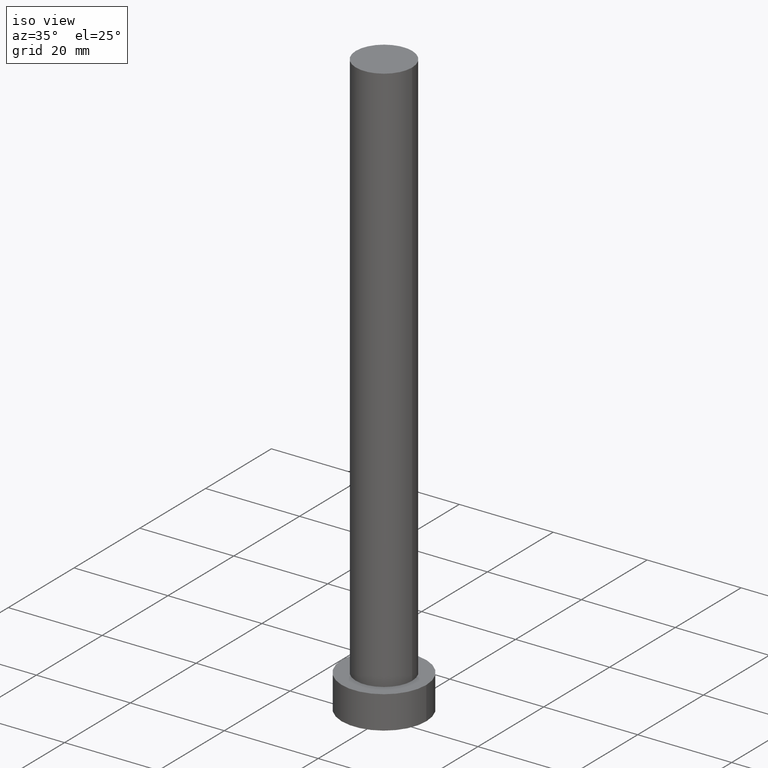
[diagram: clean part render]
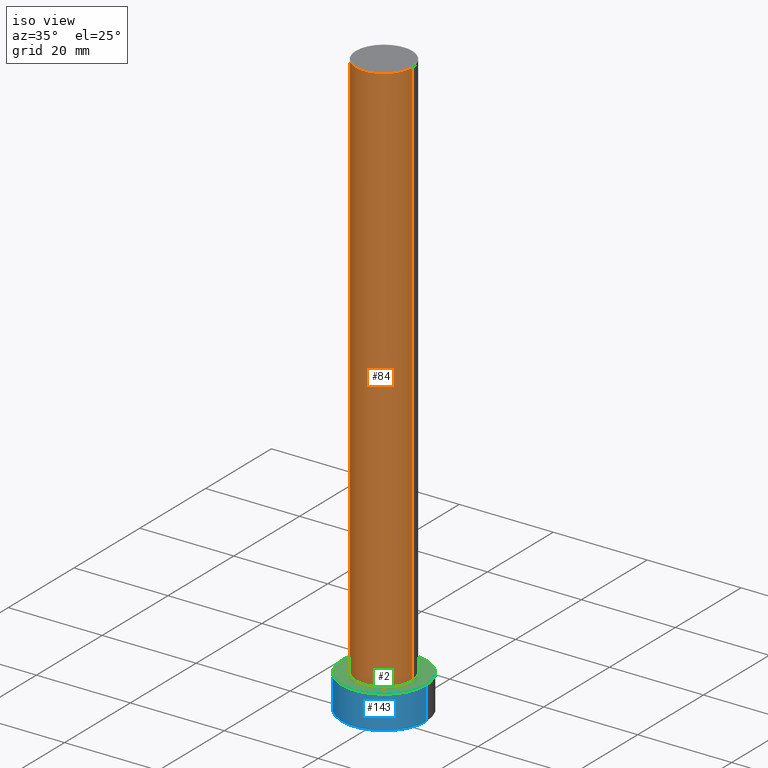
[diagram: same view with three faces highlighted in distinct colors, each labeled with its STEP entity id]
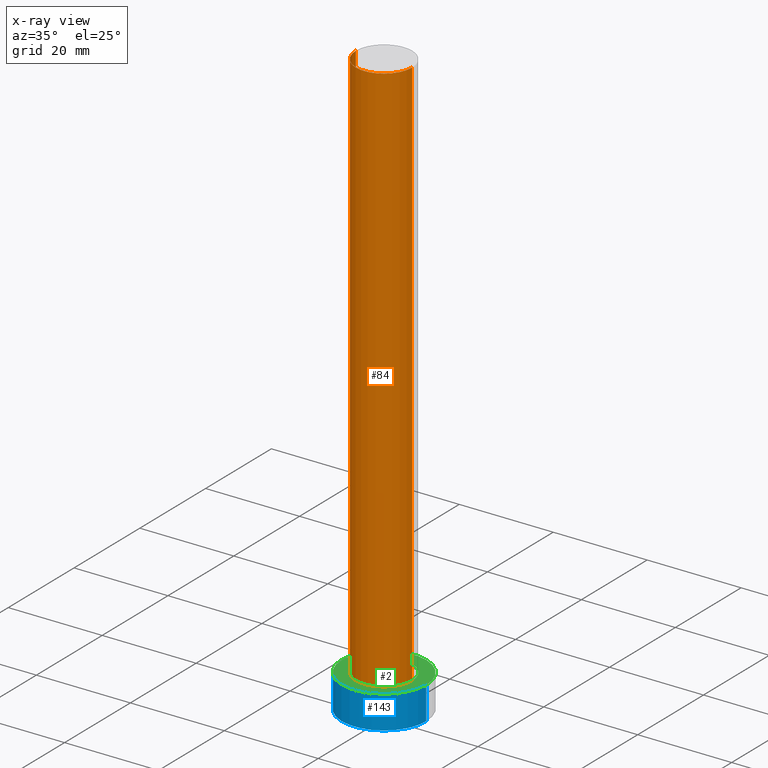
[diagram: x-ray of the same camera — body ghosted, the three highlighted faces saturated]
A machine part, iso view with three faces highlighted in distinct colors.
The next image is the same camera in x-ray (body ghosted, the three faces saturated) — at least one of them is partly hidden behind the body in this view.
Their STEP definitions:

[orange] entity #84 — the highlighted cylindrical surface (edge-blend (fillet) strip) has radius 6 mm, axis along (-0, -0, -1).
#1 = CARTESIAN_POINT ( 'NONE',  ( -6.000000000000000888, 0.000000000000000000, 7.000000000000000000 ) ) ;
#7 = VECTOR ( 'NONE', #52, 1000.000000000000000 ) ;
#10 = AXIS2_PLACEMENT_3D ( 'NONE', #214, #111, #40 ) ;
#15 = CARTESIAN_POINT ( 'NONE',  ( 6.000000000000000888, 7.347880794884120722E-16, 125.0000000000000000 ) ) ;
#22 = VERTEX_POINT ( 'NONE', #15 ) ;
#35 = CARTESIAN_POINT ( 'NONE',  ( 0.000000000000000000, 0.000000000000000000, 125.0000000000000000 ) ) ;
#37 = DIRECTION ( 'NONE',  ( 0.000000000000000000, 0.000000000000000000, 1.000000000000000000 ) ) ;
#38 = DIRECTION ( 'NONE',  ( 1.000000000000000000, 0.000000000000000000, 0.000000000000000000 ) ) ;
#39 = ORIENTED_EDGE ( 'NONE', *, *, #162, .F. ) ;
#40 = DIRECTION ( 'NONE',  ( -1.000000000000000000, 0.000000000000000000, 0.000000000000000000 ) ) ;
#42 = CIRCLE ( 'NONE', #96, 6.000000000000000888 ) ;
#52 = DIRECTION ( 'NONE',  ( -0.000000000000000000, -0.000000000000000000, -1.000000000000000000 ) ) ;
#73 = CARTESIAN_POINT ( 'NONE',  ( -6.000000000000000888, 0.000000000000000000, 125.0000000000000000 ) ) ;
#81 = VECTOR ( 'NONE', #182, 1000.000000000000000 ) ;
#82 = VERTEX_POINT ( 'NONE', #229 ) ;
#84 = ADVANCED_FACE ( 'NONE', ( #126 ), #146, .T. ) ;
#86 = LINE ( 'NONE', #73, #7 ) ;
#96 = AXIS2_PLACEMENT_3D ( 'NONE', #35, #37, #129 ) ;
#99 = EDGE_CURVE ( 'NONE', #193, #22, #42, .T. ) ;
#111 = DIRECTION ( 'NONE',  ( -0.000000000000000000, -0.000000000000000000, -1.000000000000000000 ) ) ;
#126 = FACE_OUTER_BOUND ( 'NONE', #216, .T. ) ;
#129 = DIRECTION ( 'NONE',  ( 1.000000000000000000, 0.000000000000000000, 0.000000000000000000 ) ) ;
#137 = AXIS2_PLACEMENT_3D ( 'NONE', #151, #249, #38 ) ;
#146 = CYLINDRICAL_SURFACE ( 'NONE', #10, 6.000000000000000888 ) ;
#151 = CARTESIAN_POINT ( 'NONE',  ( 0.000000000000000000, 0.000000000000000000, 7.000000000000000000 ) ) ;
#155 = LINE ( 'NONE', #235, #81 ) ;
#156 = VERTEX_POINT ( 'NONE', #1 ) ;
#161 = ORIENTED_EDGE ( 'NONE', *, *, #201, .T. ) ;
#162 = EDGE_CURVE ( 'NONE', #22, #82, #155, .T. ) ;
#182 = DIRECTION ( 'NONE',  ( -0.000000000000000000, -0.000000000000000000, -1.000000000000000000 ) ) ;
#191 = ORIENTED_EDGE ( 'NONE', *, *, #209, .T. ) ;
#193 = VERTEX_POINT ( 'NONE', #237 ) ;
#201 = EDGE_CURVE ( 'NONE', #193, #156, #86, .T. ) ;
#209 = EDGE_CURVE ( 'NONE', #156, #82, #255, .T. ) ;
#214 = CARTESIAN_POINT ( 'NONE',  ( 0.000000000000000000, 0.000000000000000000, 125.0000000000000000 ) ) ;
#216 = EDGE_LOOP ( 'NONE', ( #39, #240, #161, #191 ) ) ;
#229 = CARTESIAN_POINT ( 'NONE',  ( 6.000000000000000888, 7.347880794884120722E-16, 7.000000000000000000 ) ) ;
#235 = CARTESIAN_POINT ( 'NONE',  ( 6.000000000000000888, 7.347880794884120722E-16, 125.0000000000000000 ) ) ;
#237 = CARTESIAN_POINT ( 'NONE',  ( -6.000000000000000888, 0.000000000000000000, 125.0000000000000000 ) ) ;
#240 = ORIENTED_EDGE ( 'NONE', *, *, #99, .F. ) ;
#249 = DIRECTION ( 'NONE',  ( 0.000000000000000000, 0.000000000000000000, 1.000000000000000000 ) ) ;
#255 = CIRCLE ( 'NONE', #137, 6.000000000000000888 ) ;

[blue] entity #143 — the highlighted cylindrical surface (partial cylindrical patch) has radius 9 mm, axis along (-0, -0, -1).
#4 = CARTESIAN_POINT ( 'NONE',  ( 9.000000000000000000, 1.102182119232617714E-15, 7.000000000000000000 ) ) ;
#12 = VERTEX_POINT ( 'NONE', #172 ) ;
#13 = CYLINDRICAL_SURFACE ( 'NONE', #242, 9.000000000000000000 ) ;
#20 = CARTESIAN_POINT ( 'NONE',  ( 0.000000000000000000, 0.000000000000000000, 7.000000000000000000 ) ) ;
#25 = AXIS2_PLACEMENT_3D ( 'NONE', #108, #106, #87 ) ;
#32 = CARTESIAN_POINT ( 'NONE',  ( -9.000000000000000000, 0.000000000000000000, 0.000000000000000000 ) ) ;
#45 = LINE ( 'NONE', #64, #114 ) ;
#54 = ORIENTED_EDGE ( 'NONE', *, *, #195, .T. ) ;
#55 = ORIENTED_EDGE ( 'NONE', *, *, #90, .F. ) ;
#64 = CARTESIAN_POINT ( 'NONE',  ( -9.000000000000000000, 0.000000000000000000, 7.000000000000000000 ) ) ;
#69 = DIRECTION ( 'NONE',  ( 0.000000000000000000, 0.000000000000000000, 1.000000000000000000 ) ) ;
#77 = ORIENTED_EDGE ( 'NONE', *, *, #245, .T. ) ;
#79 = EDGE_LOOP ( 'NONE', ( #136, #55, #54, #77 ) ) ;
#87 = DIRECTION ( 'NONE',  ( 1.000000000000000000, 0.000000000000000000, 0.000000000000000000 ) ) ;
#90 = EDGE_CURVE ( 'NONE', #12, #218, #190, .T. ) ;
#92 = DIRECTION ( 'NONE',  ( -0.000000000000000000, -0.000000000000000000, -1.000000000000000000 ) ) ;
#101 = AXIS2_PLACEMENT_3D ( 'NONE', #159, #69, #105 ) ;
#105 = DIRECTION ( 'NONE',  ( 1.000000000000000000, 0.000000000000000000, 0.000000000000000000 ) ) ;
#106 = DIRECTION ( 'NONE',  ( 0.000000000000000000, 0.000000000000000000, 1.000000000000000000 ) ) ;
#108 = CARTESIAN_POINT ( 'NONE',  ( 0.000000000000000000, 0.000000000000000000, 7.000000000000000000 ) ) ;
#114 = VECTOR ( 'NONE', #244, 1000.000000000000000 ) ;
#136 = ORIENTED_EDGE ( 'NONE', *, *, #175, .F. ) ;
#140 = VECTOR ( 'NONE', #160, 1000.000000000000000 ) ;
#143 = ADVANCED_FACE ( 'NONE', ( #198 ), #13, .T. ) ;
#159 = CARTESIAN_POINT ( 'NONE',  ( 0.000000000000000000, 0.000000000000000000, 0.000000000000000000 ) ) ;
#160 = DIRECTION ( 'NONE',  ( -0.000000000000000000, -0.000000000000000000, -1.000000000000000000 ) ) ;
#172 = CARTESIAN_POINT ( 'NONE',  ( -9.000000000000000000, 0.000000000000000000, 7.000000000000000000 ) ) ;
#175 = EDGE_CURVE ( 'NONE', #218, #197, #204, .T. ) ;
#177 = DIRECTION ( 'NONE',  ( -1.000000000000000000, 0.000000000000000000, 0.000000000000000000 ) ) ;
#190 = CIRCLE ( 'NONE', #25, 9.000000000000000000 ) ;
#195 = EDGE_CURVE ( 'NONE', #12, #238, #45, .T. ) ;
#197 = VERTEX_POINT ( 'NONE', #207 ) ;
#198 = FACE_OUTER_BOUND ( 'NONE', #79, .T. ) ;
#204 = LINE ( 'NONE', #4, #140 ) ;
#207 = CARTESIAN_POINT ( 'NONE',  ( 9.000000000000000000, 1.102182119232617714E-15, 0.000000000000000000 ) ) ;
#218 = VERTEX_POINT ( 'NONE', #230 ) ;
#219 = CIRCLE ( 'NONE', #101, 9.000000000000000000 ) ;
#230 = CARTESIAN_POINT ( 'NONE',  ( 9.000000000000000000, 1.102182119232617714E-15, 7.000000000000000000 ) ) ;
#238 = VERTEX_POINT ( 'NONE', #32 ) ;
#242 = AXIS2_PLACEMENT_3D ( 'NONE', #20, #92, #177 ) ;
#244 = DIRECTION ( 'NONE',  ( -0.000000000000000000, -0.000000000000000000, -1.000000000000000000 ) ) ;
#245 = EDGE_CURVE ( 'NONE', #238, #197, #219, .T. ) ;

[green] entity #2 — the highlighted planar face has unit normal (0, 0, 1).
#1 = CARTESIAN_POINT ( 'NONE',  ( -6.000000000000000888, 0.000000000000000000, 7.000000000000000000 ) ) ;
#2 = ADVANCED_FACE ( 'NONE', ( #19, #14 ), #252, .T. ) ;
#9 = CARTESIAN_POINT ( 'NONE',  ( 0.000000000000000000, 0.000000000000000000, 7.000000000000000000 ) ) ;
#12 = VERTEX_POINT ( 'NONE', #172 ) ;
#14 = FACE_OUTER_BOUND ( 'NONE', #65, .T. ) ;
#19 = FACE_BOUND ( 'NONE', #63, .T. ) ;
#23 = CARTESIAN_POINT ( 'NONE',  ( 0.000000000000000000, 0.000000000000000000, 7.000000000000000000 ) ) ;
#25 = AXIS2_PLACEMENT_3D ( 'NONE', #108, #106, #87 ) ;
#38 = DIRECTION ( 'NONE',  ( 1.000000000000000000, 0.000000000000000000, 0.000000000000000000 ) ) ;
#44 = DIRECTION ( 'NONE',  ( 0.000000000000000000, 0.000000000000000000, 1.000000000000000000 ) ) ;
#57 = DIRECTION ( 'NONE',  ( 0.000000000000000000, 0.000000000000000000, 1.000000000000000000 ) ) ;
#63 = EDGE_LOOP ( 'NONE', ( #98, #88 ) ) ;
#65 = EDGE_LOOP ( 'NONE', ( #213, #221 ) ) ;
#82 = VERTEX_POINT ( 'NONE', #229 ) ;
#87 = DIRECTION ( 'NONE',  ( 1.000000000000000000, 0.000000000000000000, 0.000000000000000000 ) ) ;
#88 = ORIENTED_EDGE ( 'NONE', *, *, #220, .F. ) ;
#90 = EDGE_CURVE ( 'NONE', #12, #218, #190, .T. ) ;
#94 = DIRECTION ( 'NONE',  ( 1.000000000000000000, 0.000000000000000000, 0.000000000000000000 ) ) ;
#97 = AXIS2_PLACEMENT_3D ( 'NONE', #23, #44, #94 ) ;
#98 = ORIENTED_EDGE ( 'NONE', *, *, #209, .F. ) ;
#106 = DIRECTION ( 'NONE',  ( 0.000000000000000000, 0.000000000000000000, 1.000000000000000000 ) ) ;
#108 = CARTESIAN_POINT ( 'NONE',  ( 0.000000000000000000, 0.000000000000000000, 7.000000000000000000 ) ) ;
#110 = DIRECTION ( 'NONE',  ( 1.000000000000000000, 0.000000000000000000, -0.000000000000000000 ) ) ;
#131 = CIRCLE ( 'NONE', #97, 9.000000000000000000 ) ;
#137 = AXIS2_PLACEMENT_3D ( 'NONE', #151, #249, #38 ) ;
#144 = AXIS2_PLACEMENT_3D ( 'NONE', #9, #57, #167 ) ;
#151 = CARTESIAN_POINT ( 'NONE',  ( 0.000000000000000000, 0.000000000000000000, 7.000000000000000000 ) ) ;
#156 = VERTEX_POINT ( 'NONE', #1 ) ;
#158 = AXIS2_PLACEMENT_3D ( 'NONE', #250, #231, #110 ) ;
#167 = DIRECTION ( 'NONE',  ( 1.000000000000000000, 0.000000000000000000, 0.000000000000000000 ) ) ;
#172 = CARTESIAN_POINT ( 'NONE',  ( -9.000000000000000000, 0.000000000000000000, 7.000000000000000000 ) ) ;
#185 = EDGE_CURVE ( 'NONE', #218, #12, #131, .T. ) ;
#190 = CIRCLE ( 'NONE', #25, 9.000000000000000000 ) ;
#208 = CIRCLE ( 'NONE', #144, 6.000000000000000888 ) ;
#209 = EDGE_CURVE ( 'NONE', #156, #82, #255, .T. ) ;
#213 = ORIENTED_EDGE ( 'NONE', *, *, #90, .T. ) ;
#218 = VERTEX_POINT ( 'NONE', #230 ) ;
#220 = EDGE_CURVE ( 'NONE', #82, #156, #208, .T. ) ;
#221 = ORIENTED_EDGE ( 'NONE', *, *, #185, .T. ) ;
#229 = CARTESIAN_POINT ( 'NONE',  ( 6.000000000000000888, 7.347880794884120722E-16, 7.000000000000000000 ) ) ;
#230 = CARTESIAN_POINT ( 'NONE',  ( 9.000000000000000000, 1.102182119232617714E-15, 7.000000000000000000 ) ) ;
#231 = DIRECTION ( 'NONE',  ( 0.000000000000000000, 0.000000000000000000, 1.000000000000000000 ) ) ;
#249 = DIRECTION ( 'NONE',  ( 0.000000000000000000, 0.000000000000000000, 1.000000000000000000 ) ) ;
#250 = CARTESIAN_POINT ( 'NONE',  ( 0.000000000000000000, 0.000000000000000000, 7.000000000000000000 ) ) ;
#252 = PLANE ( 'NONE',  #158 ) ;
#255 = CIRCLE ( 'NONE', #137, 6.000000000000000888 ) ;